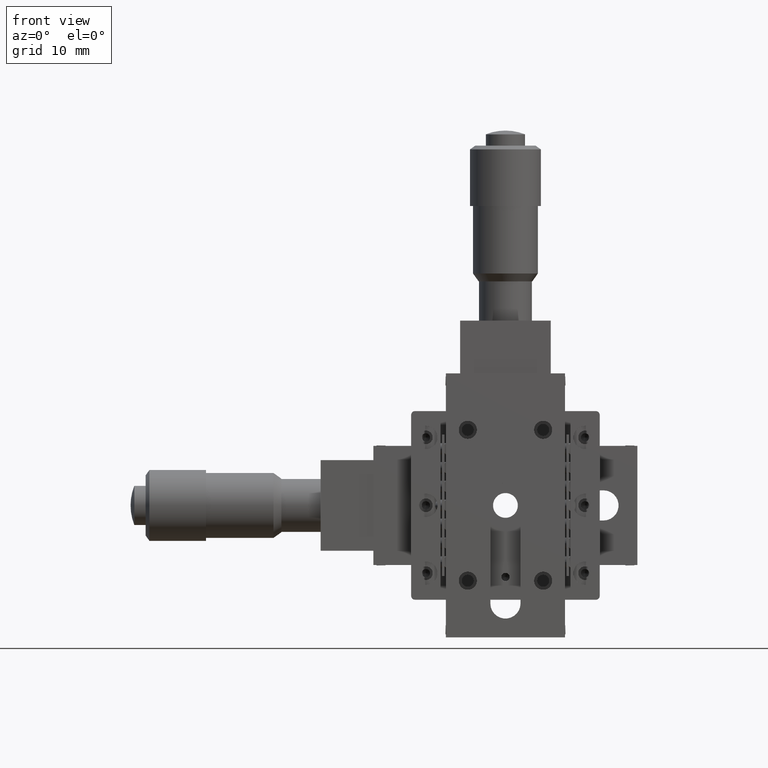
[diagram: clean part render]
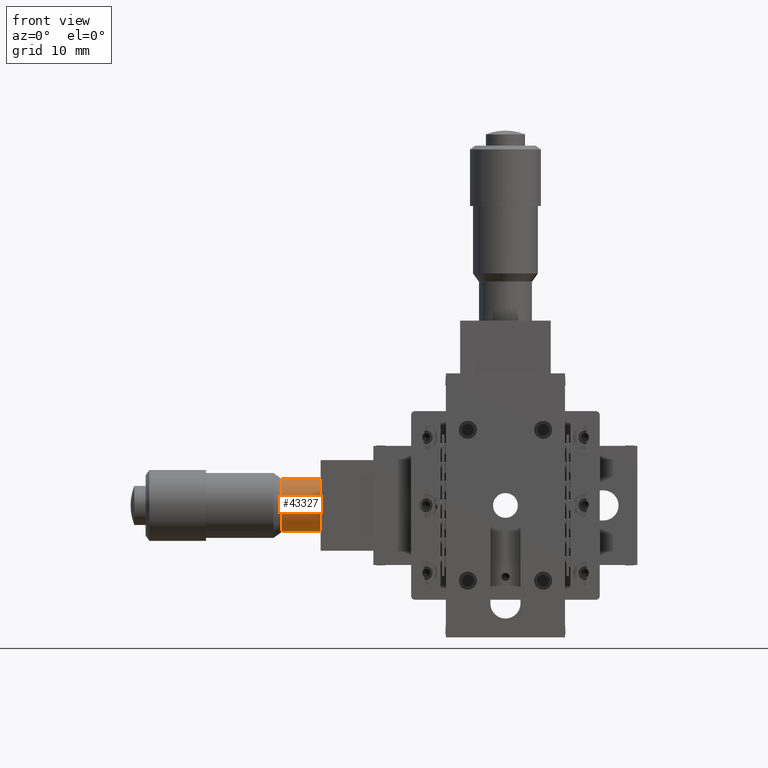
[diagram: same view with one face highlighted and labeled with its STEP entity id]
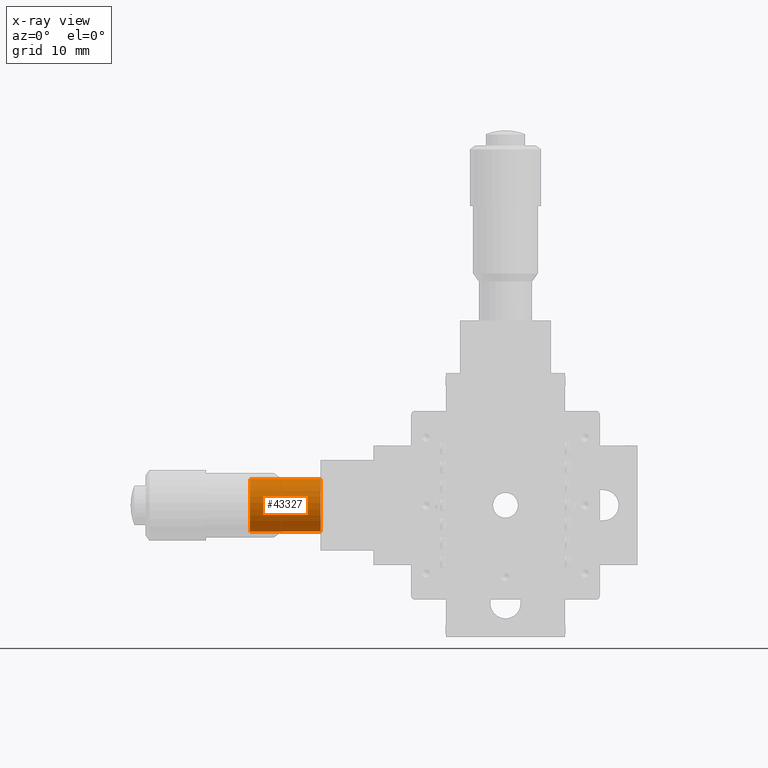
[diagram: x-ray of the same camera — body ghosted, the highlighted face saturated]
A machine part, front view. The second image highlights one B-rep face of the part: STEP entity #43327.
The next image is the same camera in x-ray: the body ghosted, the highlighted face saturated — about 0% of this face is hidden behind the body in this view.
In plain terms, the highlighted cylindrical surface (edge-blend (fillet) strip) has radius 3.5 mm, axis along (-1, 0, 0).
Its self-contained STEP definition (entity closure, byte-faithful):
#1538 = EDGE_CURVE ( 'NONE', #43340, #28188, #16346, .T. ) ;
#2758 = DIRECTION ( 'NONE',  ( 1.000000000000000000, -5.346298860960465100E-017, -1.110223024625996400E-016 ) ) ;
#5163 = EDGE_LOOP ( 'NONE', ( #67554, #6244, #60289, #49881 ) ) ;
#6244 = ORIENTED_EDGE ( 'NONE', *, *, #31443, .T. ) ;
#6512 = CIRCLE ( 'NONE', #56431, 3.500000000000004400 ) ;
#12208 = CARTESIAN_POINT ( 'NONE',  ( -89.54102306920675900, 14.70232663972499400, -3.498503860052547300 ) ) ;
#13077 = CARTESIAN_POINT ( 'NONE',  ( -24.49999999999914700, 14.49767336027487000, 3.498503860052544700 ) ) ;
#13322 = DIRECTION ( 'NONE',  ( 0.0000000000000000000, -0.02923618277858830400, 0.9995725314435851500 ) ) ;
#16346 = LINE ( 'NONE', #26812, #18881 ) ;
#17059 = CARTESIAN_POINT ( 'NONE',  ( -24.49999999999914700, 14.59999999999992900, -1.971788113157867800E-015 ) ) ;
#18235 = DIRECTION ( 'NONE',  ( 0.0000000000000000000, -0.02923618277858830400, 0.9995725314435851500 ) ) ;
#18881 = VECTOR ( 'NONE', #59168, 1000.000000000000000 ) ;
#24157 = CARTESIAN_POINT ( 'NONE',  ( -33.89999999999915300, 14.59999999999994300, -8.095202596046002700E-016 ) ) ;
#24458 = CARTESIAN_POINT ( 'NONE',  ( -24.49999999999914700, 14.70232663972499100, -3.498503860052549100 ) ) ;
#26812 = CARTESIAN_POINT ( 'NONE',  ( -89.54102306920675900, 14.49767336027487400, 3.498503860052558000 ) ) ;
#28188 = VERTEX_POINT ( 'NONE', #41939 ) ;
#30760 = CARTESIAN_POINT ( 'NONE',  ( -33.89999999999915300, 14.70232663972499100, -3.498503860052548200 ) ) ;
#31443 = EDGE_CURVE ( 'NONE', #48830, #43340, #6512, .T. ) ;
#32323 = AXIS2_PLACEMENT_3D ( 'NONE', #24157, #2758, #18235 ) ;
#33881 = DIRECTION ( 'NONE',  ( -1.000000000000000000, 5.346298860960463900E-017, 1.110223024626044000E-016 ) ) ;
#36929 = VERTEX_POINT ( 'NONE', #30760 ) ;
#40955 = EDGE_CURVE ( 'NONE', #48830, #36929, #66810, .T. ) ;
#41795 = EDGE_CURVE ( 'NONE', #28188, #36929, #61631, .T. ) ;
#41939 = CARTESIAN_POINT ( 'NONE',  ( -33.89999999999915300, 14.49767336027487000, 3.498503860052545500 ) ) ;
#43327 = ADVANCED_FACE ( 'NONE', ( #64677 ), #60380, .T. ) ;
#43340 = VERTEX_POINT ( 'NONE', #13077 ) ;
#48830 = VERTEX_POINT ( 'NONE', #24458 ) ;
#49881 = ORIENTED_EDGE ( 'NONE', *, *, #41795, .T. ) ;
#56431 = AXIS2_PLACEMENT_3D ( 'NONE', #17059, #33881, #65769 ) ;
#59168 = DIRECTION ( 'NONE',  ( -1.000000000000000000, 5.346298860960463900E-017, 1.110223024626044000E-016 ) ) ;
#60289 = ORIENTED_EDGE ( 'NONE', *, *, #1538, .T. ) ;
#60380 = CYLINDRICAL_SURFACE ( 'NONE', #68287, 3.500000000000004400 ) ;
#61631 = CIRCLE ( 'NONE', #32323, 3.500000000000004400 ) ;
#62944 = DIRECTION ( 'NONE',  ( -1.000000000000000000, 5.346298860960463900E-017, 1.110223024626044000E-016 ) ) ;
#64677 = FACE_OUTER_BOUND ( 'NONE', #5163, .T. ) ;
#65769 = DIRECTION ( 'NONE',  ( 0.0000000000000000000, -0.02923618277858830400, 0.9995725314435851500 ) ) ;
#66159 = DIRECTION ( 'NONE',  ( -1.000000000000000000, 5.346298860960463900E-017, 1.110223024626044000E-016 ) ) ;
#66810 = LINE ( 'NONE', #12208, #70243 ) ;
#67554 = ORIENTED_EDGE ( 'NONE', *, *, #40955, .F. ) ;
#68152 = CARTESIAN_POINT ( 'NONE',  ( -89.54102306920675900, 14.59999999999993200, 5.246463243308870600E-015 ) ) ;
#68287 = AXIS2_PLACEMENT_3D ( 'NONE', #68152, #62944, #13322 ) ;
#70243 = VECTOR ( 'NONE', #66159, 1000.000000000000000 ) ;